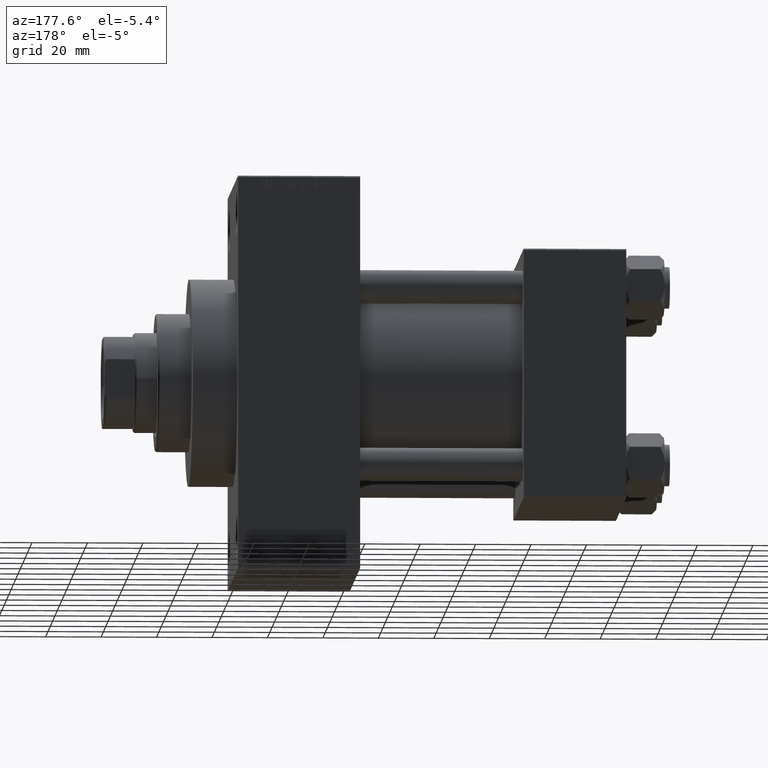
[diagram: clean part render]
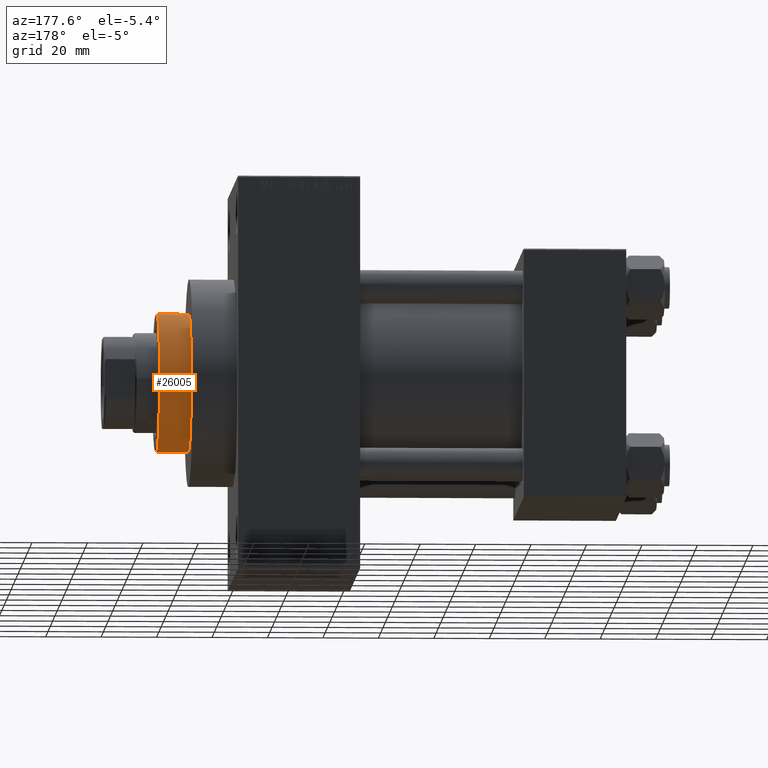
[diagram: same view with one face highlighted and labeled with its STEP entity id]
A machine part, auxiliary view. The second image highlights one B-rep face of the part: STEP entity #26005.
In plain terms, the highlighted cylindrical surface (partial cylindrical patch) has radius 25 mm, axis along (-1, -0, 0).
Its self-contained STEP definition (entity closure, byte-faithful):
#1567 = CARTESIAN_POINT ( 'NONE',  ( 25.00000000000000000, 3.061616997868383043E-15, 43.25999999999999801 ) ) ;
#3260 = DIRECTION ( 'NONE',  ( 0.000000000000000000, 0.000000000000000000, 1.000000000000000000 ) ) ;
#4568 = CARTESIAN_POINT ( 'NONE',  ( 0.000000000000000000, 0.000000000000000000, 55.26000000000000512 ) ) ;
#6191 = EDGE_CURVE ( 'NONE', #14208, #16252, #27671, .T. ) ;
#6648 = LINE ( 'NONE', #38407, #44073 ) ;
#9844 = CARTESIAN_POINT ( 'NONE',  ( 0.000000000000000000, 0.000000000000000000, 54.76000000000000512 ) ) ;
#11158 = VERTEX_POINT ( 'NONE', #26129 ) ;
#11485 = DIRECTION ( 'NONE',  ( -1.000000000000000000, 0.000000000000000000, 0.000000000000000000 ) ) ;
#14208 = VERTEX_POINT ( 'NONE', #30521 ) ;
#14237 = DIRECTION ( 'NONE',  ( 1.000000000000000000, 0.000000000000000000, 0.000000000000000000 ) ) ;
#16252 = VERTEX_POINT ( 'NONE', #1567 ) ;
#19121 = FACE_OUTER_BOUND ( 'NONE', #37668, .T. ) ;
#19309 = VERTEX_POINT ( 'NONE', #34429 ) ;
#19587 = AXIS2_PLACEMENT_3D ( 'NONE', #9844, #28236, #31341 ) ;
#20513 = DIRECTION ( 'NONE',  ( -0.000000000000000000, -0.000000000000000000, -1.000000000000000000 ) ) ;
#20599 = EDGE_CURVE ( 'NONE', #16252, #19309, #33009, .T. ) ;
#20731 = CARTESIAN_POINT ( 'NONE',  ( 25.00000000000000000, 3.061616997868383043E-15, 55.26000000000000512 ) ) ;
#22227 = CYLINDRICAL_SURFACE ( 'NONE', #35506, 25.00000000000000000 ) ;
#26005 = ADVANCED_FACE ( 'NONE', ( #19121 ), #22227, .T. ) ;
#26129 = CARTESIAN_POINT ( 'NONE',  ( -25.00000000000000000, 0.000000000000000000, 54.76000000000000512 ) ) ;
#27671 = LINE ( 'NONE', #20731, #42539 ) ;
#28236 = DIRECTION ( 'NONE',  ( 0.000000000000000000, 0.000000000000000000, -1.000000000000000000 ) ) ;
#28941 = ORIENTED_EDGE ( 'NONE', *, *, #30658, .F. ) ;
#29645 = DIRECTION ( 'NONE',  ( -0.000000000000000000, -0.000000000000000000, -1.000000000000000000 ) ) ;
#30521 = CARTESIAN_POINT ( 'NONE',  ( 25.00000000000000000, 3.061616997868383043E-15, 54.76000000000000512 ) ) ;
#30658 = EDGE_CURVE ( 'NONE', #11158, #19309, #6648, .T. ) ;
#31341 = DIRECTION ( 'NONE',  ( 1.000000000000000000, 0.000000000000000000, 0.000000000000000000 ) ) ;
#32149 = CARTESIAN_POINT ( 'NONE',  ( 0.000000000000000000, 0.000000000000000000, 43.25999999999999801 ) ) ;
#33009 = CIRCLE ( 'NONE', #45248, 25.00000000000000000 ) ;
#34429 = CARTESIAN_POINT ( 'NONE',  ( -25.00000000000000000, 0.000000000000000000, 43.25999999999999801 ) ) ;
#35401 = ORIENTED_EDGE ( 'NONE', *, *, #20599, .T. ) ;
#35506 = AXIS2_PLACEMENT_3D ( 'NONE', #4568, #29645, #11485 ) ;
#35774 = DIRECTION ( 'NONE',  ( -0.000000000000000000, -0.000000000000000000, -1.000000000000000000 ) ) ;
#36178 = ORIENTED_EDGE ( 'NONE', *, *, #47098, .T. ) ;
#37668 = EDGE_LOOP ( 'NONE', ( #36178, #44407, #35401, #28941 ) ) ;
#38407 = CARTESIAN_POINT ( 'NONE',  ( -25.00000000000000000, 0.000000000000000000, 55.26000000000000512 ) ) ;
#42539 = VECTOR ( 'NONE', #20513, 1000.000000000000000 ) ;
#43984 = CIRCLE ( 'NONE', #19587, 25.00000000000000000 ) ;
#44073 = VECTOR ( 'NONE', #35774, 1000.000000000000000 ) ;
#44407 = ORIENTED_EDGE ( 'NONE', *, *, #6191, .T. ) ;
#45248 = AXIS2_PLACEMENT_3D ( 'NONE', #32149, #3260, #14237 ) ;
#47098 = EDGE_CURVE ( 'NONE', #11158, #14208, #43984, .T. ) ;